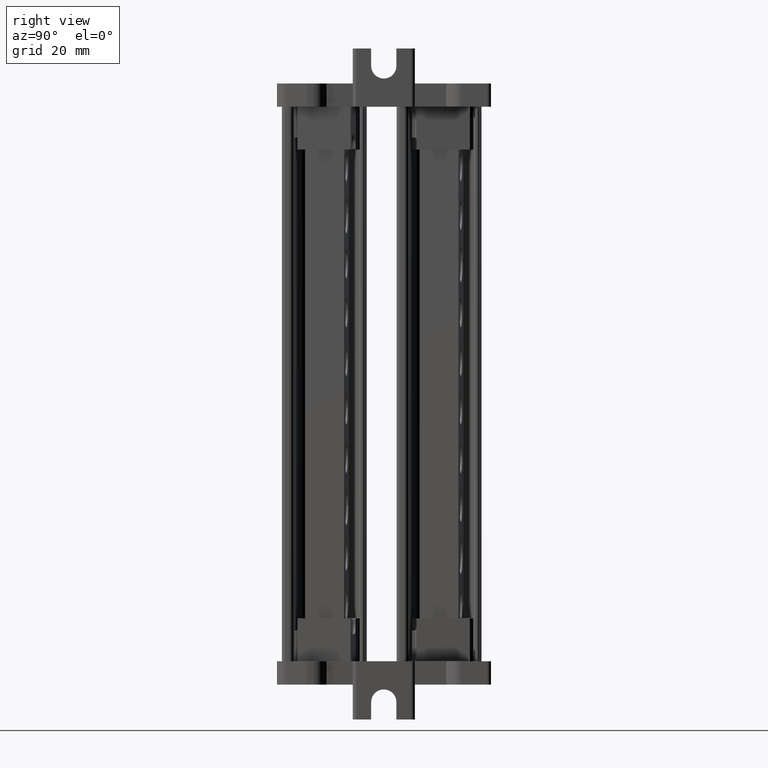
[diagram: clean part render]
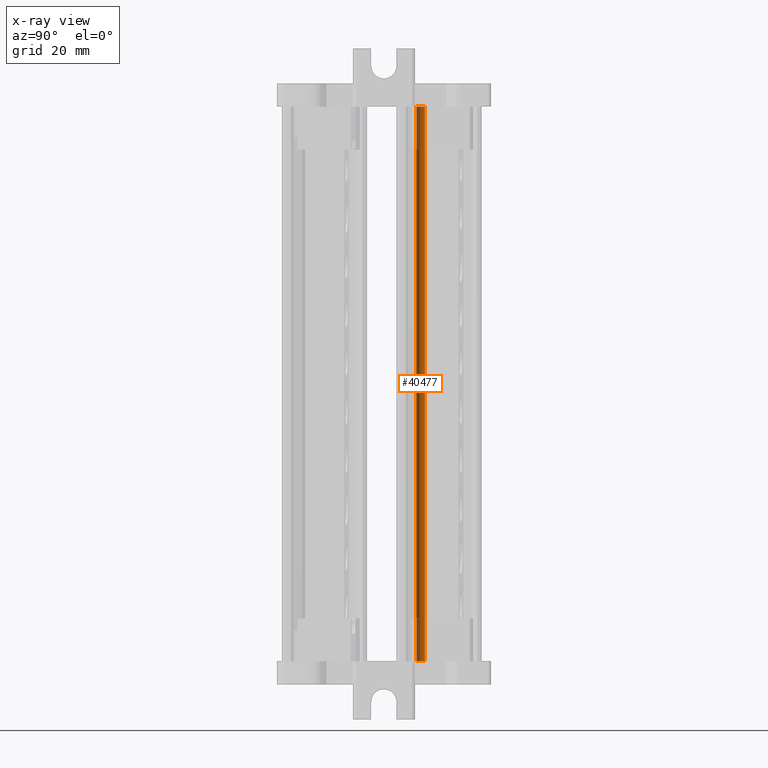
[diagram: x-ray — body ghosted, one internal face saturated and labeled with its STEP entity id]
A machine part, right view, then the same camera in x-ray: the body is ghosted and one INTERNAL B-rep face — a face not visible from any outside direction — is saturated and labeled: STEP entity #40477.
In plain terms, the highlighted cylindrical surface (edge-blend (fillet) strip) has radius 2 mm, axis along (0, 0, -1).
Its self-contained STEP definition (entity closure, byte-faithful):
#5964 = EDGE_CURVE ( 'NONE', #57695, #57656, #49856, .T. ) ;
#5972 = EDGE_CURVE ( 'NONE', #57650, #57682, #49850, .T. ) ;
#6476 = EDGE_CURVE ( 'NONE', #57656, #57650, #38667, .T. ) ;
#6494 = EDGE_CURVE ( 'NONE', #57695, #57682, #38726, .T. ) ;
#9643 = EDGE_LOOP ( 'NONE', ( #10186, #10129, #10191, #10117 ) ) ;
#10117 = ORIENTED_EDGE ( 'NONE', *, *, #5964, .F. ) ;
#10129 = ORIENTED_EDGE ( 'NONE', *, *, #5972, .F. ) ;
#10186 = ORIENTED_EDGE ( 'NONE', *, *, #6494, .T. ) ;
#10191 = ORIENTED_EDGE ( 'NONE', *, *, #6476, .F. ) ;
#11961 = AXIS2_PLACEMENT_3D ( 'NONE', #24893, #24854, #24881 ) ;
#24854 = DIRECTION ( 'NONE',  ( 1.346109084957222500E-014, 2.026694229324841800E-013, -1.000000000000000000 ) ) ;
#24858 = FACE_OUTER_BOUND ( 'NONE', #9643, .T. ) ;
#24859 = CYLINDRICAL_SURFACE ( 'NONE', #11961, 2.000000000000001800 ) ;
#24881 = DIRECTION ( 'NONE',  ( 0.0000000000000000000, 1.000000000000000000, 2.012279232133094500E-013 ) ) ;
#24893 = CARTESIAN_POINT ( 'NONE',  ( 1869.522523849874000, 794.2482920562883900, 116.6204558807806800 ) ) ;
#34438 = CARTESIAN_POINT ( 'NONE',  ( 1867.530134560143100, 794.4226047585360700, 148.5203038006000000 ) ) ;
#34440 = CARTESIAN_POINT ( 'NONE',  ( 1869.313466923337700, 792.2592482655454700, 148.5203038005998100 ) ) ;
#34468 = CARTESIAN_POINT ( 'NONE',  ( 1869.313466923340500, 792.2592482655742300, 5.998782997044203000 ) ) ;
#34474 = CARTESIAN_POINT ( 'NONE',  ( 1867.530134560144700, 794.4226047585651700, 5.998782997044410900 ) ) ;
#38655 = CARTESIAN_POINT ( 'NONE',  ( 1867.530134560143600, 794.4226047585427800, 116.6204558807807000 ) ) ;
#38667 = LINE ( 'NONE', #38655, #49210 ) ;
#38673 = DIRECTION ( 'NONE',  ( 1.346109084957222500E-014, 2.026694229324841800E-013, -1.000000000000000000 ) ) ;
#38699 = CARTESIAN_POINT ( 'NONE',  ( 1869.313466923338200, 792.2592482655519500, 116.6204558807799900 ) ) ;
#38722 = DIRECTION ( 'NONE',  ( 2.121574976562093500E-014, 2.018543754397310800E-013, -1.000000000000000000 ) ) ;
#38726 = LINE ( 'NONE', #38699, #49201 ) ;
#40477 = ADVANCED_FACE ( 'NONE', ( #24858 ), #24859, .F. ) ;
#45994 = CARTESIAN_POINT ( 'NONE',  ( 1869.522523849873600, 794.2482920562820300, 148.5203038006002300 ) ) ;
#46000 = DIRECTION ( 'NONE',  ( 1.346109084957222500E-014, 2.026694229324841800E-013, -1.000000000000000000 ) ) ;
#46060 = DIRECTION ( 'NONE',  ( 0.0000000000000000000, 1.000000000000000000, 2.081668171172166700E-013 ) ) ;
#46141 = DIRECTION ( 'NONE',  ( -1.346109084957222500E-014, -2.026694229324841800E-013, 1.000000000000000000 ) ) ;
#46143 = CARTESIAN_POINT ( 'NONE',  ( 1869.522523849875600, 794.2482920563109000, 5.998782997044399300 ) ) ;
#46163 = DIRECTION ( 'NONE',  ( 0.0000000000000000000, 1.000000000000000000, 2.025289658202920500E-013 ) ) ;
#49201 = VECTOR ( 'NONE', #38722, 1000.000000000000000 ) ;
#49210 = VECTOR ( 'NONE', #38673, 1000.000000000000000 ) ;
#49850 = CIRCLE ( 'NONE', #49895, 2.000000000000001800 ) ;
#49856 = CIRCLE ( 'NONE', #49900, 2.000000000000001800 ) ;
#49895 = AXIS2_PLACEMENT_3D ( 'NONE', #46143, #46141, #46163 ) ;
#49900 = AXIS2_PLACEMENT_3D ( 'NONE', #45994, #46000, #46060 ) ;
#57650 = VERTEX_POINT ( 'NONE', #34474 ) ;
#57656 = VERTEX_POINT ( 'NONE', #34438 ) ;
#57682 = VERTEX_POINT ( 'NONE', #34468 ) ;
#57695 = VERTEX_POINT ( 'NONE', #34440 ) ;